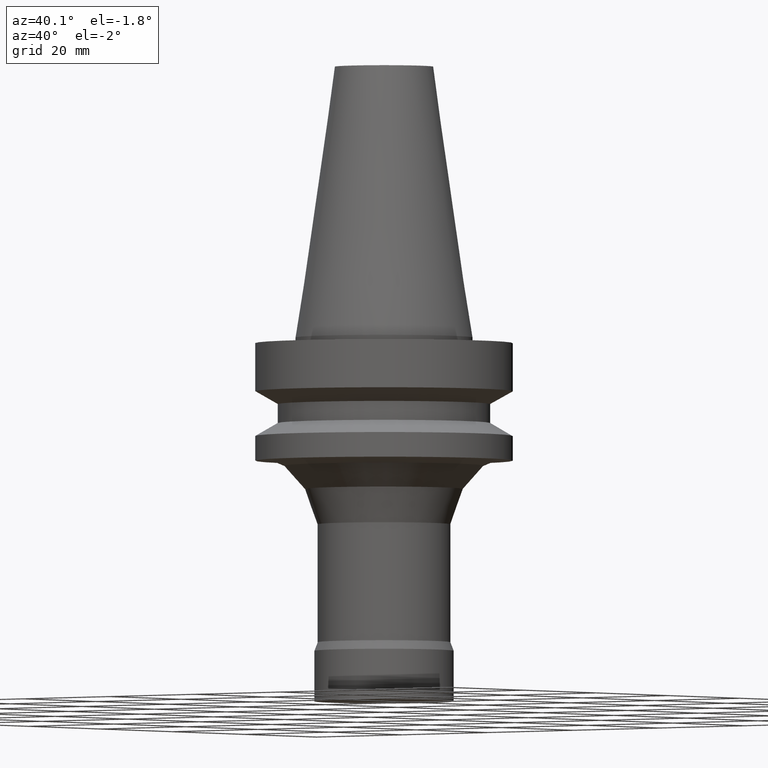
[diagram: clean part render]
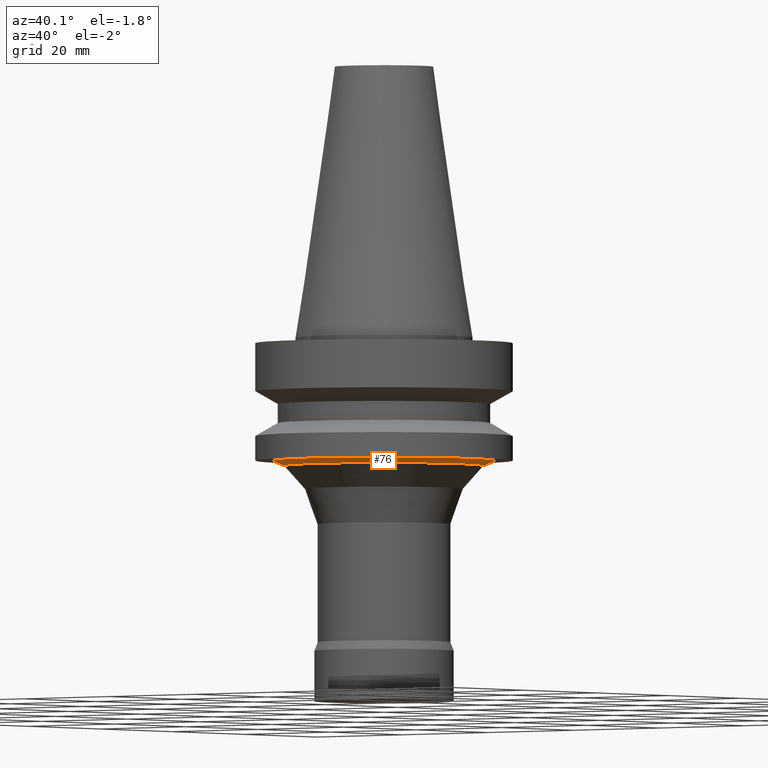
[diagram: same view with one face highlighted and labeled with its STEP entity id]
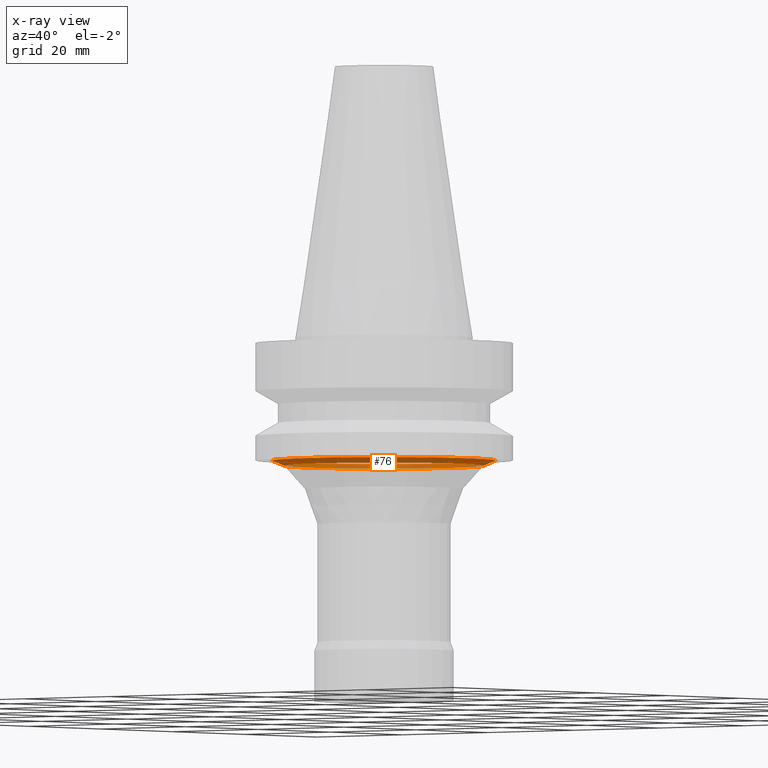
[diagram: x-ray of the same camera — body ghosted, the highlighted face saturated]
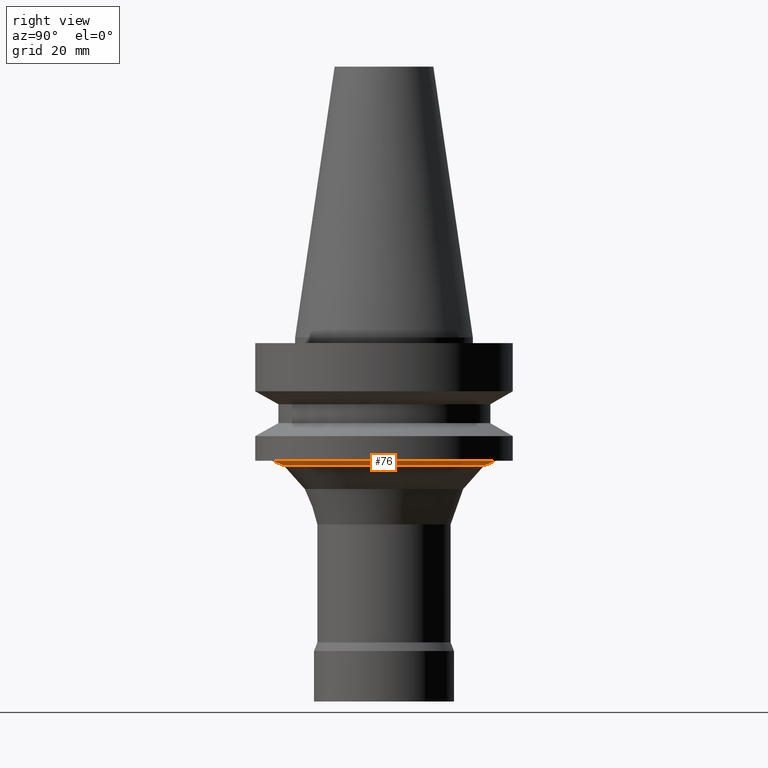
[diagram: same view with one face highlighted and labeled with its STEP entity id]
A machine part, auxiliary view. The second image highlights one B-rep face of the part: STEP entity #76.
The next image is the same camera in x-ray: the body ghosted, the highlighted face saturated — about 40% of this face is hidden behind the body in this view.
A second angle (right view) of the same face is appended — the face is thin or edge-on in the first view.
In plain terms, the highlighted conical surface has half-angle 67.215 deg.
Its self-contained STEP definition (entity closure, byte-faithful):
#76=ADVANCED_FACE('',(#96,#97),#98,.T.);
#96=FACE_BOUND('',#145,.T.);
#97=FACE_BOUND('',#146,.T.);
#98=CONICAL_SURFACE('',#147,18.9288342251295,1.1731200013546);
#145=EDGE_LOOP('',(#196));
#146=EDGE_LOOP('',(#197));
#147=AXIS2_PLACEMENT_3D('',#198,#199,#200);
#196=ORIENTED_EDGE('',*,*,#276,.F.);
#197=ORIENTED_EDGE('',*,*,#274,.T.);
#198=CARTESIAN_POINT('',(1.37466300307443E-015,2.74932600614887E-015,-22.4499505331909));
#199=DIRECTION('',(-6.12323399573677E-017,-1.22464679914735E-016,1.0));
#200=DIRECTION('',(-1.23259516440783E-032,1.0,1.22464679914735E-016));
#274=EDGE_CURVE('',#290,#290,#291,.T.);
#276=EDGE_CURVE('',#294,#294,#295,.T.);
#290=VERTEX_POINT('',#322);
#291=CIRCLE('',#323,20.0);
#294=VERTEX_POINT('',#326);
#295=CIRCLE('',#327,17.857668450259);
#322=CARTESIAN_POINT('',(1.34711147906209E-015,20.0,-22.0));
#323=AXIS2_PLACEMENT_3D('',#354,#355,#356);
#326=CARTESIAN_POINT('',(1.40221452708678E-015,17.857668450259,-22.8999010663818));
#327=AXIS2_PLACEMENT_3D('',#360,#361,#362);
#354=CARTESIAN_POINT('',(1.34711147906209E-015,2.69422295812418E-015,-22.0));
#355=DIRECTION('',(6.12323399573677E-017,1.22464679914735E-016,-1.0));
#356=DIRECTION('',(-1.23259516440783E-032,1.0,1.22464679914735E-016));
#360=CARTESIAN_POINT('',(1.40221452708678E-015,2.80442905417356E-015,-22.8999010663818));
#361=DIRECTION('',(6.12323399573676E-017,1.22464679914735E-016,-1.0));
#362=DIRECTION('',(-1.23259516440783E-032,1.0,1.22464679914735E-016));